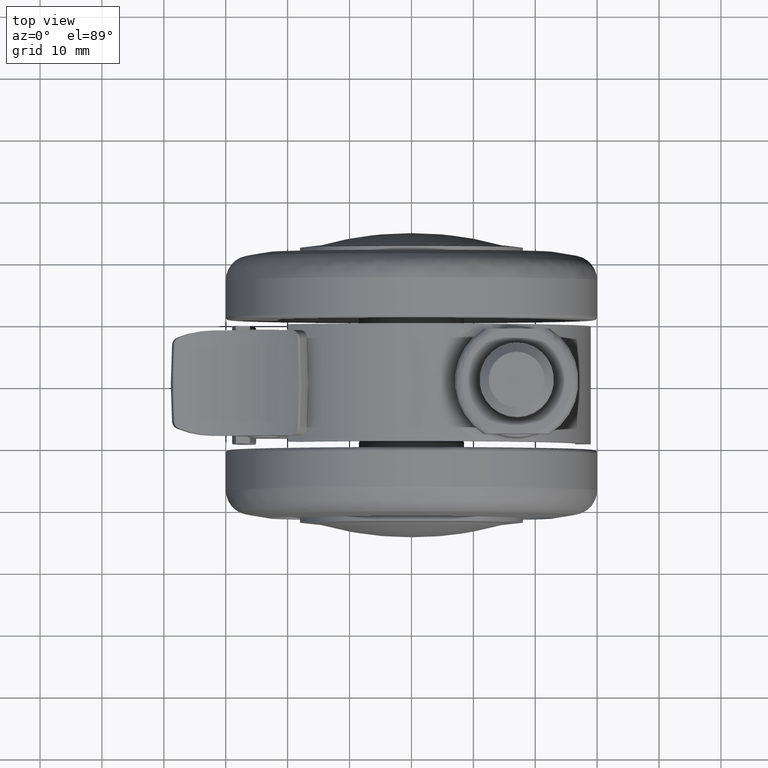
[diagram: clean part render]
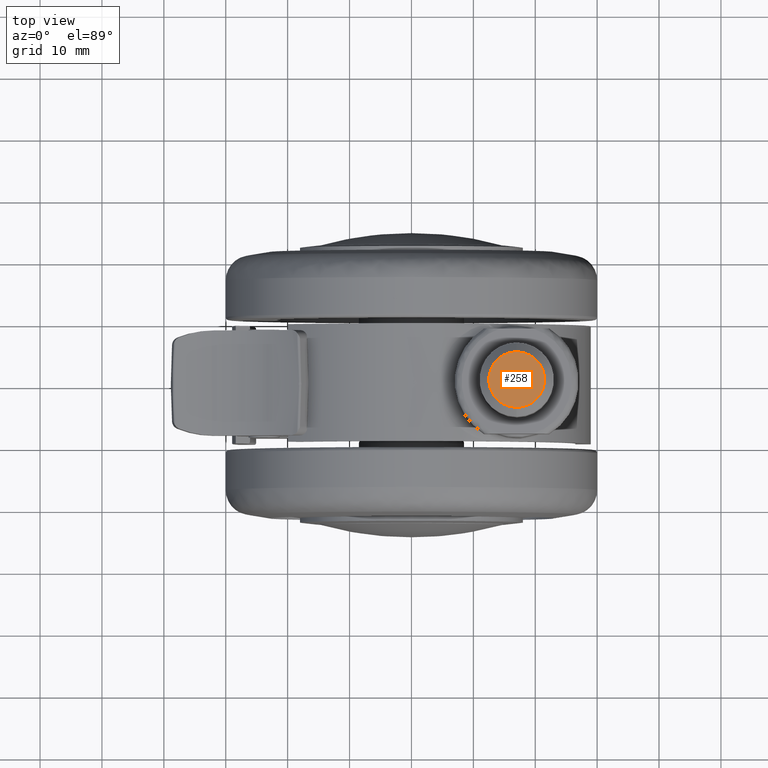
[diagram: same view with one face highlighted and labeled with its STEP entity id]
A machine part, top view. The second image highlights one B-rep face of the part: STEP entity #258.
In plain terms, the highlighted planar face has unit normal (0, -0, -1).
Its self-contained STEP definition (entity closure, byte-faithful):
#258=ADVANCED_FACE('',(#1058),#1057,.F.);
#1057=PLANE('',#3845);
#1058=FACE_OUTER_BOUND('',#3846,.T.);
#3842=CARTESIAN_POINT('',(-2.00000000000E+01,-9.35307436087E+00,1.03500000000E+01));
#3843=DIRECTION('',(1.00000000000E+00,0.00000000000E+00,-0.00000000000E+00));
#3844=DIRECTION('',(-0.00000000000E+00,0.00000000000E+00,-1.00000000000E+00));
#3845=AXIS2_PLACEMENT_3D('',#3842,#3843,#3844);
#3846=EDGE_LOOP('',(#6094,#6095));
#6094=ORIENTED_EDGE('',*,*,#7098,.F.);
#6095=ORIENTED_EDGE('',*,*,#7099,.F.);
#7098=EDGE_CURVE('',#8589,#8590,#8591,.T.);
#7099=EDGE_CURVE('',#8590,#8589,#8597,.T.);
#8589=VERTEX_POINT('',#12209);
#8590=VERTEX_POINT('',#12210);
#8591=CIRCLE('',#12214,4.50000000000E+00);
#8597=CIRCLE('',#12218,4.50000000000E+00);
#12209=CARTESIAN_POINT('',(-2.00000000000E+01,2.96059473233E-16,4.50000000000E+00));
#12210=CARTESIAN_POINT('',(-2.00000000000E+01,0.00000000000E+00,-4.50000000000E+00));
#12211=CARTESIAN_POINT('',(-2.00000000000E+01,0.00000000000E+00,0.00000000000E+00));
#12212=DIRECTION('',(1.00000000000E+00,0.00000000000E+00,0.00000000000E+00));
#12213=DIRECTION('',(0.00000000000E+00,-1.22460635382E-16,-1.00000000000E+00));
#12214=AXIS2_PLACEMENT_3D('',#12211,#12212,#12213);
#12215=CARTESIAN_POINT('',(-2.00000000000E+01,0.00000000000E+00,0.00000000000E+00));
#12216=DIRECTION('',(1.00000000000E+00,0.00000000000E+00,0.00000000000E+00));
#12217=DIRECTION('',(0.00000000000E+00,-1.22460635382E-16,-1.00000000000E+00));
#12218=AXIS2_PLACEMENT_3D('',#12215,#12216,#12217);